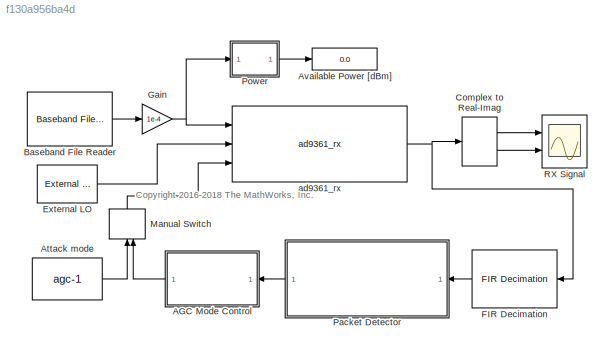
MODEL slx_f130a956ba4d
KIND model
CONFIG AbsTol = auto
CONFIG EnableMultiTasking = off
CONFIG FixedStep = auto
CONFIG MaxStep = auto
CONFIG MinStep = auto
CONFIG RelTol = 1e-3
CONFIG SampleTimeConstraint = Unconstrained
CONFIG Solver = VariableStepAuto
CONFIG SolverName = VariableStepAuto
CONFIG StartTime = 0.0
CONFIG StopTime = 0.0001
WORKSPACE source: MAT-file member
WORKSPACE SampleTime_rx = 5e-08
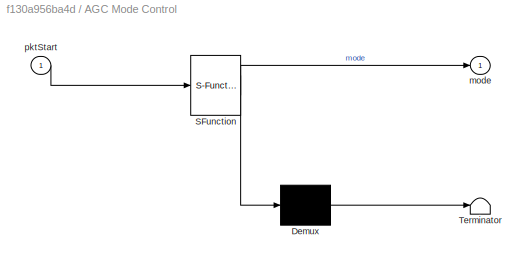
BLOCK [SubSystem] AGC Mode Control
  ErrorFcn = Stateflow.Translate.translate
  PermitHierarchicalResolution = ExplicitOnly
  Ports = [1, 1]
  RequestExecContextInheritance = off
  SFBlockType = MATLAB Function
  TreatAsAtomicUnit = on
BLOCK [Demux] AGC Mode Control/ Demux 
  Outputs = 1
  Ports = [1, 1]
BLOCK [S-Function] AGC Mode Control/ SFunction 
  EnableBusSupport = off
  FunctionName = sf_sfun
  PortCounts = [1 2]
  Ports = [1, 2]
  SFcnIsStateOwnerBlock = off
  SFunctionDeploymentMode = off
  Tag = Stateflow S-Function ad9361_rx_wlan_testbench 1
BLOCK [Terminator] AGC Mode Control/ Terminator 
BLOCK [Outport] AGC Mode Control/mode
  IconDisplay = Port number
BLOCK [Inport] AGC Mode Control/pktStart
  IconDisplay = Port number
BLOCK [Constant] Attack mode
  AncestorBlock = ad9361_models/ad9361_rx/Attack \nmode
  SampleTime = -1
  Value = agc-1
BLOCK [Display] Available Power [dBm]
  Decimation = 1
  Ports = [1]
BLOCK [Reference] Baseband File Reader  REF=commsource2/Baseband File Reader
  Ports = [0, 1]
  SourceBlock = commsource2/Baseband File Reader
  SourceProductBaseCode = CM
  SourceProductName = Communications Toolbox
  SourceType = Baseband File Reader
BLOCK [ComplexToRealImag] Complex to Real-Imag
  Ports = [1, 2]
BLOCK [Reference] External LO  REF=ad9371_utilities/External LO1
  Ports = [0, 1]
  SourceBlock = ad9371_utilities/External LO1
  SourceProductBaseCode = SIM_RF_TRANS
  SourceProductName = RF Blockset Models for Analog Devices RF Transceivers
BLOCK [Reference] FIR Decimation  REF=dspmlti4/FIR
Decimation
  Ports = [1, 1]
  SourceBlock = dspmlti4/FIR\nDecimation
  SourceProductBaseCode = DS
  SourceProductName = DSP System Toolbox
  SourceType = FIR Decimation
  UserDataPersistent = on
BLOCK [Gain] Gain
  Gain = 1e-4
  OutDataTypeStr = Inherit: Inherit via internal rule
  ParamDataTypeStr = Inherit: Inherit via internal rule
  SaturateOnIntegerOverflow = off
BLOCK [ManualSwitch] Manual Switch
  CurrentSetting = 0
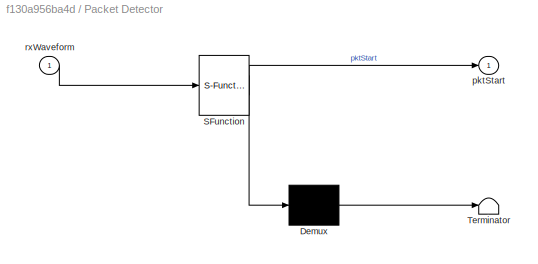
BLOCK [SubSystem] Packet Detector
  ErrorFcn = Stateflow.Translate.translate
  PermitHierarchicalResolution = ExplicitOnly
  Ports = [1, 1]
  RequestExecContextInheritance = off
  SFBlockType = MATLAB Function
  TreatAsAtomicUnit = on
BLOCK [Demux] Packet Detector/ Demux 
  Outputs = 1
  Ports = [1, 1]
BLOCK [S-Function] Packet Detector/ SFunction 
  EnableBusSupport = off
  FunctionName = sf_sfun
  PortCounts = [1 2]
  Ports = [1, 2]
  SFcnIsStateOwnerBlock = off
  SFunctionDeploymentMode = off
  Tag = Stateflow S-Function ad9361_rx_wlan_testbench 10
BLOCK [Terminator] Packet Detector/ Terminator 
BLOCK [Outport] Packet Detector/pktStart
  IconDisplay = Port number
BLOCK [Inport] Packet Detector/rxWaveform
  IconDisplay = Port number
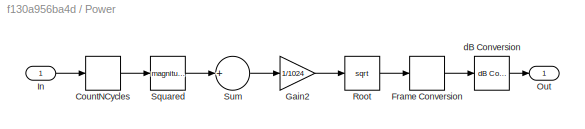
BLOCK [SubSystem] Power
  Ports = [1, 1]
  RequestExecContextInheritance = off
  ShowPortLabels = none
BLOCK [Buffer] Power/CountNCycles
  N = 1024
BLOCK [FrameConversion] Power/Frame Conversion
  OutFrame = Sample-based
  Ports = [1, 1]
BLOCK [Gain] Power/Gain2
  Gain = 1/1024
  OutDataTypeStr = Inherit: Inherit via internal rule
  ParamDataTypeStr = Inherit: Inherit via internal rule
  SaturateOnIntegerOverflow = off
BLOCK [Inport] Power/In
  IconDisplay = Port number
BLOCK [Outport] Power/Out
  IconDisplay = Port number
BLOCK [Sqrt] Power/Root
BLOCK [Math] Power/Squared
  Operator = magnitude^2
  Ports = [1, 1]
BLOCK [Sum] Power/Sum
  CollapseMode = Specified dimension
  InputSameDT = off
  Inputs = +
  OutDataTypeStr = Inherit: Inherit via internal rule
  Ports = [1, 1]
  SaturateOnIntegerOverflow = off
BLOCK [Reference] Power/dB Conversion  REF=dspmathops/dB Conversion
  Ports = [1, 1]
  SourceBlock = dspmathops/dB Conversion
  SourceProductBaseCode = DS
  SourceProductName = DSP System Toolbox
  SourceType = dB Conversion
BLOCK [Scope] RX Signal
  Floating = off
  NumInputPorts = 2
  Ports = [2]
  ScopeSpecificationString = Simulink.scopes.TimeScopeBlockCfg('CurrentConfiguration', extmgr.ConfigurationSet(extmgr.Configuration('Core','General UI',true),extmgr.Configuration('Core','Source UI',true),extmgr.Configuration('Sources','WiredSimulink',true,'DataLoggingSaveFormat','StructureWithTime','DataLoggingDecimation','1','DataLoggingVariableName','ScopeData1'),extmgr.Configuration('Visuals','Time Domain',true,'Serialized...<+2030ch>
BLOCK [Reference] ad9361_rx  REF=adi_ad9361_models/ad9361_rx  (lib defined in slx_0550e39a4431)
  Ports = [3, 1]
  SourceBlock = adi_ad9361_models/ad9361_rx
  SourceType = ad9361_RX
  UserDataPersistent = on
ANNOTATION (root): <copyright redacted>
LINE AGC Mode Control:1 -> Manual Switch:2
LINE Attack mode:1 -> Manual Switch:1
LINE Baseband File Reader:1 -> Gain:1
LINE Complex to Real-Imag:1 -> RX Signal:1
LINE Complex to Real-Imag:2 -> RX Signal:2
LINE External LO:1 -> ad9361_rx:2
LINE FIR Decimation:1 -> Packet Detector:1
NET Gain:1 -> Power:1, ad9361_rx:1
LINE Manual Switch:1 -> ad9361_rx:3
LINE Packet Detector:1 -> AGC Mode Control:1
LINE Power/CountNCycles:1 -> Power/Squared:1
LINE Power/Frame Conversion:1 -> Power/dB Conversion:1
LINE Power/Gain2:1 -> Power/Root:1
LINE Power/In:1 -> Power/CountNCycles:1
LINE Power/Root:1 -> Power/Frame Conversion:1
LINE Power/Squared:1 -> Power/Sum:1
LINE Power/Sum:1 -> Power/Gain2:1
LINE Power/dB Conversion:1 -> Power/Out:1
LINE Power:1 -> Available Power [dBm]:1
NET ad9361_rx:1 -> Complex to Real-Imag:1, FIR Decimation:1
note: NET lines group one-source signal fan-out (src -> all destinations, sorted); 1:1 wires keep LINE
CHART AGC  
Mode Control states=1 transitions=1
  STATE_LABEL 'eML_blk_kernel()'
  STATE_LABEL 'SCRIPT:\nfunction mode = fcn(pktStart)\n\npersistent prev;\nif isempty(prev)\n    prev = 0;\n    mode = 0;\nend\n\nif (pktStart == 0)\n    prev = 0;\n    lstf_sample_count = 0;\n    mode = 0;\nelse\n    lstf_sample_count = prev + pktStart;\n    if ((lstf_sample_count >= 1) && (lstf_sample_count <= 80))\n        prev = lstf_sample_count;\n        mode = 1;\n    else\n        prev = -10000;\n        mode = 0;\n    end  ...<+5ch>'
CHART Packet Detector states=1 transitions=1
  STATE_LABEL 'eML_blk_kernel()'
  STATE_LABEL "SCRIPT:\nfunction pktStart = fcn(rxWaveform)\n\n% Packet detect and determine coarse packet offset\npersistent buffer;\npersistent count;\nif isempty(count)\n    count = 0;\n    buffer = zeros(160, 1)+1i*zeros(160, 1);\n    buffer(1) = rxWaveform;\nelse\n    count = count+1;\n    buffer = circshift(buffer, 1);\n    buffer(1) = rxWaveform;\nend\npktOffset = wlanPacketDetect(buffer,'CBW20');\n\nif isempty(pktOffset)...<+95ch>"
